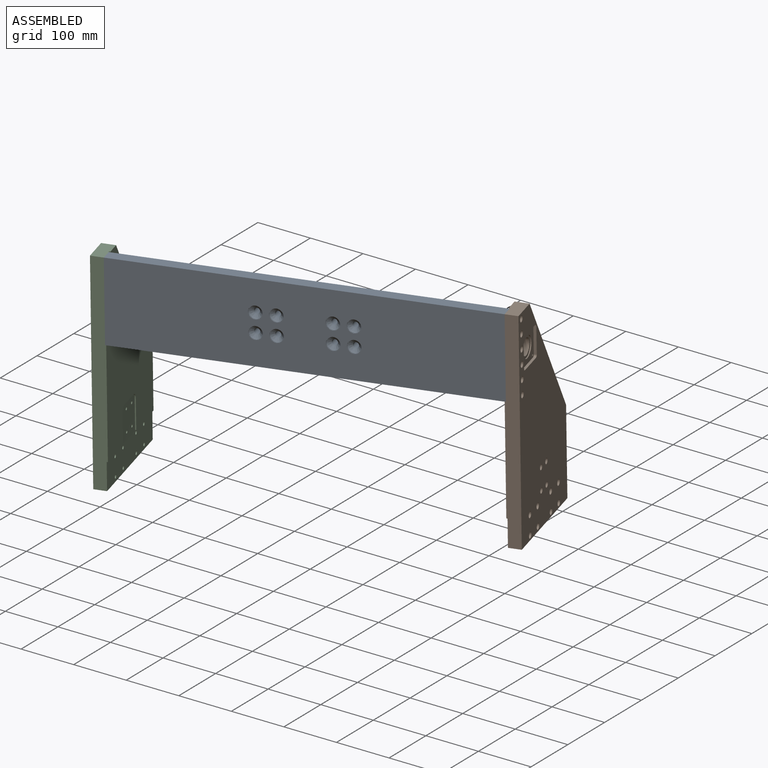
[diagram: assembled view]
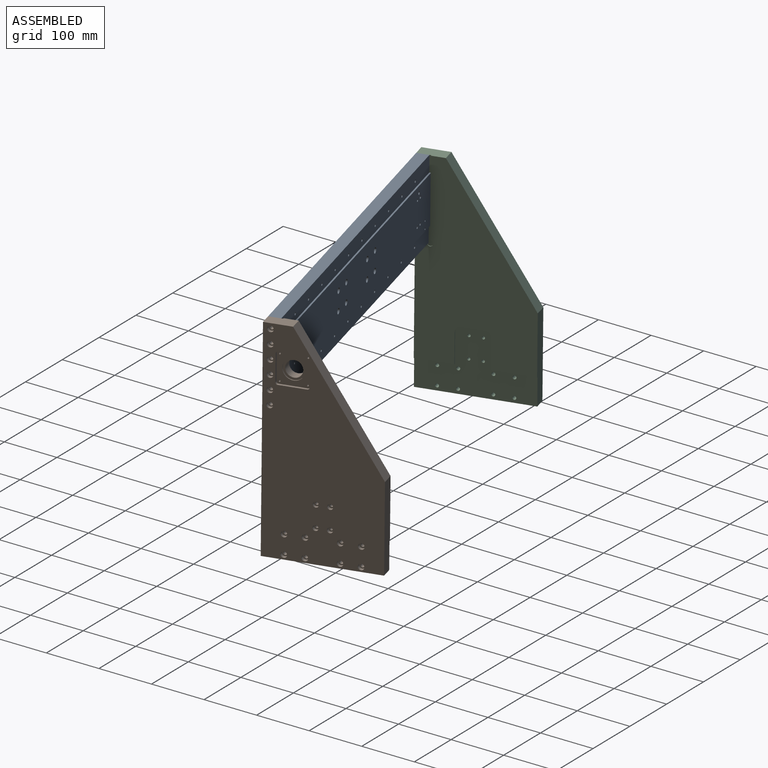
[diagram: assembled view, second angle]
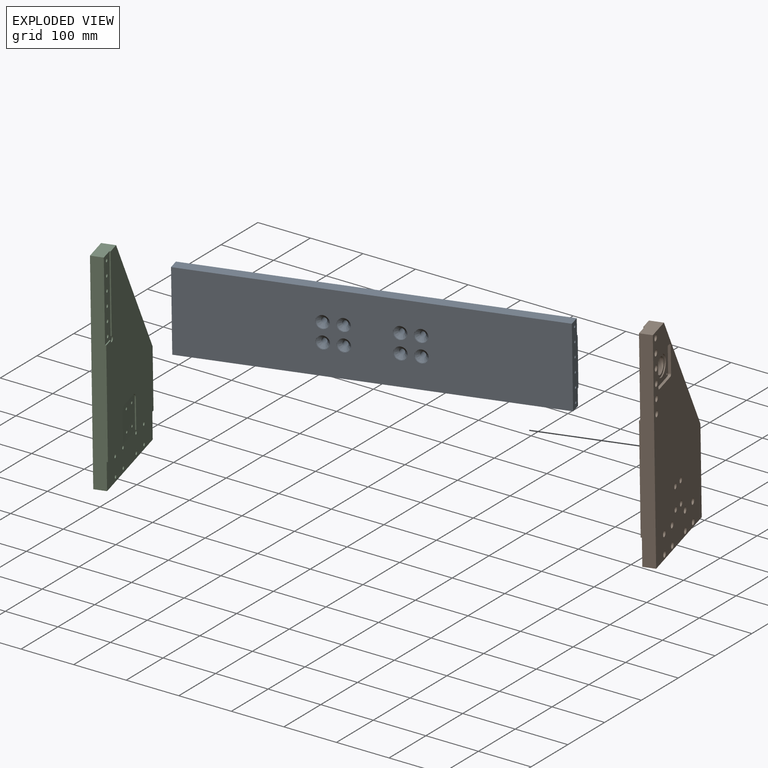
[diagram: exploded view]
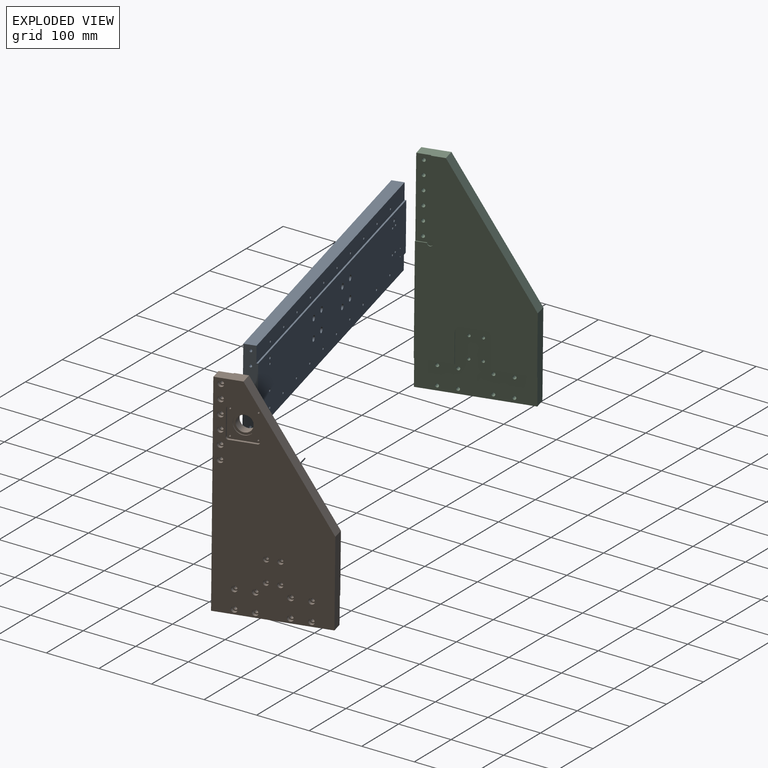
[diagram: exploded view, second angle]
ASSEMBLY  parts=3 mates=4
PART A: 126 faces, bbox 25x666x150 mm
  f0: cylinder r=1.65mm len=8mm, axis (1,0,0), area 82.9mm2, adj f1,f108
  f1: cone r=1.65mm half-angle=59deg, axis (1,0,0), area 10mm2, adj f0
  f2: cylinder r=1.65mm len=8mm, axis (1,0,0), area 82.9mm2, adj f3,f108
  f3: cone r=1.65mm half-angle=59deg, axis (1,0,0), area 10mm2, adj f2
  f4: cone r=11.6mm half-angle=45deg, axis (-1,0,0), area 482.3mm2, adj f105,f125
  f5: cone r=11.6mm half-angle=45deg, axis (-1,0,0), area 482.3mm2, adj f104,f124
  f6: cone r=11.6mm half-angle=45deg, axis (-1,0,0), area 482.3mm2, adj f102,f122
  f7: cone r=11.6mm half-angle=45deg, axis (-1,0,0), area 482.3mm2, adj f103,f123
  f8: cone r=11.6mm half-angle=45deg, axis (-1,0,0), area 482.3mm2, adj f101,f121
  f9: cone r=11.6mm half-angle=45deg, axis (-1,0,0), area 482.3mm2, adj f100,f120
  f10: cone r=11.6mm half-angle=45deg, axis (-1,0,0), area 482.3mm2, adj f99,f119
  f11: cone r=11.6mm half-angle=45deg, axis (-1,0,0), area 482.3mm2, adj f98,f118
  f12: cylinder r=12mm len=24mm, axis (-1,0,0), area 75.4mm2, adj f106,f125
  f13: cylinder r=12mm len=24mm, axis (-1,0,0), area 75.4mm2, adj f106,f124
  f14: cylinder r=12mm len=24mm, axis (-1,0,0), area 75.4mm2, adj f106,f123
  f15: cylinder r=12mm len=24mm, axis (-1,0,0), area 75.4mm2, adj f106,f122
  f16: cylinder r=12mm len=24mm, axis (-1,0,0), area 75.4mm2, adj f106,f121
  f17: cylinder r=12mm len=24mm, axis (-1,0,0), area 75.4mm2, adj f106,f120
  f18: cylinder r=12mm len=24mm, axis (-1,0,0), area 75.4mm2, adj f106,f119
  f19: cylinder r=12mm len=24mm, axis (-1,0,0), area 75.4mm2, adj f106,f118
  f20: cylinder r=2.5mm len=25mm, axis (0,1,0), area 392.7mm2, adj f21,f115
  f21: cone r=2.5mm half-angle=59deg, axis (0,1,0), area 22.9mm2, adj f20
  f22: cylinder r=2.5mm len=25mm, axis (0,1,0), area 392.7mm2, adj f23,f115
  f23: cone r=2.5mm half-angle=59deg, axis (0,1,0), area 22.9mm2, adj f22
  f24: cylinder r=2.5mm len=25mm, axis (0,1,0), area 392.7mm2, adj f25,f115
  f25: cone r=2.5mm half-angle=59deg, axis (0,1,0), area 22.9mm2, adj f24
  f26: cylinder r=2.5mm len=25mm, axis (0,1,0), area 392.7mm2, adj f27,f115
  f27: cone r=2.5mm half-angle=59deg, axis (0,1,0), area 22.9mm2, adj f26
  f28: cylinder r=2.5mm len=25mm, axis (0,1,0), area 392.7mm2, adj f29,f115
  f29: cone r=2.5mm half-angle=59deg, axis (0,1,0), area 22.9mm2, adj f28
  f30: cylinder r=2.5mm len=25mm, axis (0,1,0), area 392.7mm2, adj f31,f115
  f31: cone r=2.5mm half-angle=59deg, axis (0,1,0), area 22.9mm2, adj f30
  f32: cylinder r=2.5mm len=25mm, axis (0,-1,0), area 392.7mm2, adj f33,f114
  f33: cone r=2.5mm half-angle=59deg, axis (0,-1,0), area 22.9mm2, adj f32
  f34: cylinder r=2.5mm len=25mm, axis (0,-1,0), area 392.7mm2, adj f35,f114
  f35: cone r=2.5mm half-angle=59deg, axis (0,-1,0), area 22.9mm2, adj f34
  f36: cylinder r=2.5mm len=25mm, axis (0,-1,0), area 392.7mm2, adj f37,f114
  f37: cone r=2.5mm half-angle=59deg, axis (0,-1,0), area 22.9mm2, adj f36
  f38: cylinder r=2.5mm len=25mm, axis (0,-1,0), area 392.7mm2, adj f39,f114
  f39: cone r=2.5mm half-angle=59deg, axis (0,-1,0), area 22.9mm2, adj f38
  f40: cylinder r=2.5mm len=25mm, axis (0,-1,0), area 392.7mm2, adj f41,f114
  f41: cone r=2.5mm half-angle=59deg, axis (0,-1,0), area 22.9mm2, adj f40
  f42: cylinder r=2.5mm len=25mm, axis (0,-1,0), area 392.7mm2, adj f43,f114
  f43: cone r=2.5mm half-angle=59deg, axis (0,-1,0), area 22.9mm2, adj f42
  f44: cylinder r=3mm len=15mm, axis (1,0,0), area 282.7mm2, adj f108,f117
  f45: cylinder r=3mm len=15mm, axis (1,0,0), area 282.7mm2, adj f108,f116
  f46: cylinder r=2.5mm len=20mm, axis (1,0,0), area 314.2mm2, adj f47,f108
  f47: cone r=2.5mm half-angle=59deg, axis (1,0,0), area 22.9mm2, adj f46
  f48: cylinder r=2.5mm len=20mm, axis (1,0,0), area 314.2mm2, adj f49,f108
  f49: cone r=2.5mm half-angle=59deg, axis (1,0,0), area 22.9mm2, adj f48
  f50: cylinder r=2.5mm len=20mm, axis (1,0,0), area 314.2mm2, adj f51,f108
  f51: cone r=2.5mm half-angle=59deg, axis (1,0,0), area 22.9mm2, adj f50
  f52: cylinder r=2.5mm len=20mm, axis (1,0,0), area 314.2mm2, adj f53,f108
  f53: cone r=2.5mm half-angle=59deg, axis (1,0,0), area 22.9mm2, adj f52
  f54: cylinder r=2.5mm len=20mm, axis (1,0,0), area 314.2mm2, adj f55,f108
  f55: cone r=2.5mm half-angle=59deg, axis (1,0,0), area 22.9mm2, adj f54
  f56: cylinder r=2.5mm len=20mm, axis (1,0,0), area 314.2mm2, adj f57,f108
  f57: cone r=2.5mm half-angle=59deg, axis (1,0,0), area 22.9mm2, adj f56
  f58: cylinder r=2.5mm len=19mm, axis (1,0,0), area 298.5mm2, adj f59,f112
  f59: cone r=2.5mm half-angle=59deg, axis (1,0,0), area 22.9mm2, adj f58
  f60: cylinder r=2.5mm len=19mm, axis (1,0,0), area 298.5mm2, adj f61,f112
  f61: cone r=2.5mm half-angle=59deg, axis (1,0,0), area 22.9mm2, adj f60
  f62: cylinder r=2.5mm len=19mm, axis (1,0,0), area 298.5mm2, adj f63,f112
  f63: cone r=2.5mm half-angle=59deg, axis (1,0,0), area 22.9mm2, adj f62
  f64: cylinder r=2.5mm len=19mm, axis (1,0,0), area 298.5mm2, adj f65,f112
  f65: cone r=2.5mm half-angle=59deg, axis (1,0,0), area 22.9mm2, adj f64
  f66: cylinder r=2.5mm len=19mm, axis (1,0,0), area 298.5mm2, adj f67,f112
  f67: cone r=2.5mm half-angle=59deg, axis (1,0,0), area 22.9mm2, adj f66
  f68: cylinder r=2.5mm len=19mm, axis (1,0,0), area 298.5mm2, adj f69,f112
  f69: cone r=2.5mm half-angle=59deg, axis (1,0,0), area 22.9mm2, adj f68
  f70: cylinder r=2.5mm len=19mm, axis (1,0,0), area 298.5mm2, adj f71,f112
  f71: cone r=2.5mm half-angle=59deg, axis (1,0,0), area 22.9mm2, adj f70
  f72: cylinder r=2.5mm len=19mm, axis (1,0,0), area 298.5mm2, adj f73,f112
  f73: cone r=2.5mm half-angle=59deg, axis (1,0,0), area 22.9mm2, adj f72
  f74: cylinder r=2.5mm len=19mm, axis (1,0,0), area 298.5mm2, adj f75,f112
  f75: cone r=2.5mm half-angle=59deg, axis (1,0,0), area 22.9mm2, adj f74
  f76: cylinder r=2.5mm len=19mm, axis (1,0,0), area 298.5mm2, adj f77,f112
  f77: cone r=2.5mm half-angle=59deg, axis (1,0,0), area 22.9mm2, adj f76
  f78: cylinder r=2.5mm len=19mm, axis (1,0,0), area 298.5mm2, adj f79,f109
  f79: cone r=2.5mm half-angle=59deg, axis (1,0,0), area 22.9mm2, adj f78
  f80: cylinder r=2.5mm len=19mm, axis (1,0,0), area 298.5mm2, adj f81,f109
  f81: cone r=2.5mm half-angle=59deg, axis (1,0,0), area 22.9mm2, adj f80
  f82: cylinder r=2.5mm len=19mm, axis (1,0,0), area 298.5mm2, adj f83,f109
  f83: cone r=2.5mm half-angle=59deg, axis (1,0,0), area 22.9mm2, adj f82
  f84: cylinder r=2.5mm len=19mm, axis (1,0,0), area 298.5mm2, adj f85,f109
  f85: cone r=2.5mm half-angle=59deg, axis (1,0,0), area 22.9mm2, adj f84
  f86: cylinder r=2.5mm len=19mm, axis (1,0,0), area 298.5mm2, adj f87,f109
  f87: cone r=2.5mm half-angle=59deg, axis (1,0,0), area 22.9mm2, adj f86
  f88: cylinder r=2.5mm len=19mm, axis (1,0,0), area 298.5mm2, adj f89,f109
  f89: cone r=2.5mm half-angle=59deg, axis (1,0,0), area 22.9mm2, adj f88
  f90: cylinder r=2.5mm len=19mm, axis (1,0,0), area 298.5mm2, adj f91,f109
  f91: cone r=2.5mm half-angle=59deg, axis (1,0,0), area 22.9mm2, adj f90
  f92: cylinder r=2.5mm len=19mm, axis (1,0,0), area 298.5mm2, adj f93,f109
  f93: cone r=2.5mm half-angle=59deg, axis (1,0,0), area 22.9mm2, adj f92
  f94: cylinder r=2.5mm len=19mm, axis (1,0,0), area 298.5mm2, adj f95,f109
  f95: cone r=2.5mm half-angle=59deg, axis (1,0,0), area 22.9mm2, adj f94
  f96: cylinder r=2.5mm len=19mm, axis (1,0,0), area 298.5mm2, adj f97,f109
  f97: cone r=2.5mm half-angle=59deg, axis (1,0,0), area 22.9mm2, adj f96
  f98: cylinder r=5.1mm len=17.5mm, axis (1,0,0), area 560.8mm2, adj f11,f108
  f99: cylinder r=5.1mm len=17.5mm, axis (1,0,0), area 560.8mm2, adj f10,f108
  f100: cylinder r=5.1mm len=17.5mm, axis (1,0,0), area 560.8mm2, adj f9,f108
  f101: cylinder r=5.1mm len=17.5mm, axis (1,0,0), area 560.8mm2, adj f8,f108
  f102: cylinder r=5.1mm len=17.5mm, axis (1,0,0), area 560.8mm2, adj f6,f108
  f103: cylinder r=5.1mm len=17.5mm, axis (1,0,0), area 560.8mm2, adj f7,f108
  f104: cylinder r=5.1mm len=17.5mm, axis (1,0,0), area 560.8mm2, adj f5,f108
  f105: cylinder r=5.1mm len=17.5mm, axis (1,0,0), area 560.8mm2, adj f4,f108
  f106: plane 666x150mm, normal (-1,0,0), area 96280.9mm2, adj f12,f13,f14,f15,f16,f17,f18,f19
  f107: plane 666x22mm, normal (0,0,-1), area 14652mm2, adj f106,f109,f114,f115
  f108: plane 666x90mm, normal (1,0,0), area 59094.8mm2, adj f0,f2,f44,f45,f46,f48,f50,f52
  f109: plane 666x30mm, normal (1,0,0), area 19783.7mm2, adj f78,f80,f82,f84,f86,f88,f90,f92
  f110: plane 666x3mm, normal (0,0,-1), area 1998mm2, adj f108,f109,f114,f115
  f111: plane 666x22mm, normal (0,0,1), area 14652mm2, adj f106,f112,f114,f115
  f112: plane 666x30mm, normal (1,0,0), area 19783.7mm2, adj f58,f60,f62,f64,f66,f68,f70,f72
  f113: plane 666x3mm, normal (0,0,1), area 1998mm2, adj f108,f112,f114,f115
  f114: plane 150x25mm, normal (0,-1,0), area 3452.2mm2, adj f32,f34,f36,f38,f40,f42,f106,f107
  f115: plane 150x25mm, normal (0,1,0), area 3452.2mm2, adj f20,f22,f24,f26,f28,f30,f106,f107
  f116: plane 6x6mm, normal (1,0,0), area 28.3mm2, adj f45
  f117: plane 6x6mm, normal (1,0,0), area 28.3mm2, adj f44
  f118: plane 24x24mm, normal (-1,0,0), area 29.7mm2, adj f11,f19
  f119: plane 24x24mm, normal (-1,0,0), area 29.7mm2, adj f10,f18
  f120: plane 24x24mm, normal (-1,0,0), area 29.7mm2, adj f9,f17
  f121: plane 24x24mm, normal (-1,0,0), area 29.7mm2, adj f8,f16
  f122: plane 24x24mm, normal (-1,0,0), area 29.7mm2, adj f6,f15
  f123: plane 24x24mm, normal (-1,0,0), area 29.7mm2, adj f7,f14
  f124: plane 24x24mm, normal (-1,0,0), area 29.7mm2, adj f5,f13
  f125: plane 24x24mm, normal (-1,0,0), area 29.7mm2, adj f4,f12
PART B: 93 faces, bbox 25x205x400 mm
  f0: cylinder r=15mm len=30mm, axis (-1,0,0), area 1696.5mm2, adj f53,f90
  f1: cylinder r=1.65mm len=16mm, axis (1,0,0), area 165.9mm2, adj f2,f89
  f2: cone r=1.65mm half-angle=59deg, axis (1,0,0), area 10mm2, adj f1
  f3: cylinder r=1.65mm len=16mm, axis (1,0,0), area 165.9mm2, adj f4,f89
  f4: cone r=1.65mm half-angle=59deg, axis (1,0,0), area 10mm2, adj f3
  f5: cylinder r=1.65mm len=16mm, axis (1,0,0), area 165.9mm2, adj f6,f89
  f6: cone r=1.65mm half-angle=59deg, axis (1,0,0), area 10mm2, adj f5
  f7: cylinder r=1.65mm len=16mm, axis (1,0,0), area 165.9mm2, adj f8,f89
  f8: cone r=1.65mm half-angle=59deg, axis (1,0,0), area 10mm2, adj f7
  f9: cylinder r=19.1mm len=38.2mm, axis (1,0,0), area 240mm2, adj f89,f90
  f10: cylinder r=5.5mm len=11mm, axis (1,0,0), area 221.2mm2, adj f46,f78
  f11: cylinder r=3.3mm len=16.6mm, axis (1,0,0), area 344.2mm2, adj f60,f78
  f12: cylinder r=5.5mm len=11mm, axis (1,0,0), area 221.2mm2, adj f46,f77
  f13: cylinder r=3.3mm len=16.6mm, axis (1,0,0), area 344.2mm2, adj f60,f77
  f14: cylinder r=5.5mm len=11mm, axis (1,0,0), area 221.2mm2, adj f46,f76
  f15: cylinder r=3.3mm len=16.6mm, axis (1,0,0), area 344.2mm2, adj f60,f76
  f16: cylinder r=5.5mm len=11mm, axis (1,0,0), area 221.2mm2, adj f46,f75
  f17: cylinder r=3.3mm len=16.6mm, axis (1,0,0), area 344.2mm2, adj f60,f75
  f18: cylinder r=5.5mm len=11mm, axis (1,0,0), area 221.2mm2, adj f46,f74
  f19: cylinder r=3.3mm len=16.6mm, axis (1,0,0), area 344.2mm2, adj f60,f74
  f20: cylinder r=5.5mm len=11mm, axis (1,0,0), area 221.2mm2, adj f46,f73
  f21: cylinder r=3.3mm len=16.6mm, axis (1,0,0), area 344.2mm2, adj f60,f73
  f22: cylinder r=5.5mm len=11mm, axis (1,0,0), area 221.2mm2, adj f46,f72
  f23: cylinder r=3.3mm len=16.6mm, axis (1,0,0), area 344.2mm2, adj f54,f72
  f24: cylinder r=5.5mm len=11mm, axis (1,0,0), area 221.2mm2, adj f46,f71
  f25: cylinder r=3.3mm len=16.6mm, axis (1,0,0), area 344.2mm2, adj f54,f71
  f26: cylinder r=5.5mm len=11mm, axis (1,0,0), area 221.2mm2, adj f46,f70
  f27: cylinder r=3.3mm len=16.6mm, axis (1,0,0), area 344.2mm2, adj f54,f70
  f28: cylinder r=5.5mm len=11mm, axis (1,0,0), area 221.2mm2, adj f46,f69
  f29: cylinder r=3.3mm len=16.6mm, axis (1,0,0), area 344.2mm2, adj f54,f69
  f30: cylinder r=5.5mm len=11mm, axis (1,0,0), area 221.2mm2, adj f46,f68
  f31: cylinder r=3.3mm len=16.6mm, axis (1,0,0), area 344.2mm2, adj f54,f68
  f32: cylinder r=5.5mm len=11mm, axis (1,0,0), area 221.2mm2, adj f46,f67
  f33: cylinder r=3.3mm len=16.6mm, axis (1,0,0), area 344.2mm2, adj f54,f67
  f34: cylinder r=5.5mm len=11mm, axis (1,0,0), area 221.2mm2, adj f46,f66
  f35: cylinder r=3.3mm len=16.6mm, axis (1,0,0), area 344.2mm2, adj f54,f66
  f36: cylinder r=5.5mm len=11mm, axis (1,0,0), area 221.2mm2, adj f46,f65
  f37: cylinder r=3.3mm len=16.6mm, axis (1,0,0), area 344.2mm2, adj f54,f65
  f38: cylinder r=5mm len=10mm, axis (1,0,0), area 201.1mm2, adj f46,f64
  f39: cylinder r=2.75mm len=16.6mm, axis (1,0,0), area 286.8mm2, adj f54,f64
  f40: cylinder r=5mm len=10mm, axis (1,0,0), area 201.1mm2, adj f46,f63
  f41: cylinder r=2.75mm len=16.6mm, axis (1,0,0), area 286.8mm2, adj f54,f63
  f42: cylinder r=5mm len=10mm, axis (1,0,0), area 201.1mm2, adj f46,f62
  f43: cylinder r=2.75mm len=16.6mm, axis (1,0,0), area 286.8mm2, adj f54,f62
  f44: cylinder r=5mm len=10mm, axis (1,0,0), area 169.6mm2, adj f46,f61
  f45: cylinder r=2.75mm len=17.6mm, axis (1,0,0), area 304.1mm2, adj f54,f61
  f46: plane 400x205mm, normal (1,0,0), area 58520.1mm2, adj f10,f12,f14,f16,f18,f20,f22,f24
  f47: plane 77.5x2mm, normal (0,0,-1), area 155mm2, adj f50,f53,f54,f56
  f48: plane 400x25mm, normal (0,-1,0), area 9600mm2, adj f46,f49,f52,f53,f54,f55,f60,f79
  f49: plane 205x23mm, normal (0,0,-1), area 4715mm2, adj f46,f48,f50,f54
  f50: plane 160x25mm, normal (0,1,0), area 3900mm2, adj f46,f47,f49,f51,f53,f54
  f51: plane 240x155mm, normal (0,0.84,0.54), area 7142.5mm2, adj f46,f50,f52,f53
  f52: plane 50x25mm, normal (0,0,1), area 1200mm2, adj f46,f48,f51,f53,f59,f60
  f53: plane 350x205mm, normal (-1,0,0), area 44777.2mm2, adj f0,f47,f48,f50,f51,f52,f55,f56
  f54: plane 205x115mm, normal (-1,0,0), area 13738.4mm2, adj f23,f25,f27,f29,f31,f33,f35,f37
  f55: plane 67.5x2mm, normal (0,0,-1), area 135mm2, adj f48,f53,f54,f92
  f56: plane 55x2mm, normal (0,-1,0), area 110mm2, adj f47,f53,f54,f57
  f57: cylinder r=10mm len=10mm, axis (-1,0,0), area 31.4mm2, adj f53,f54,f56,f58
  f58: plane 40x2mm, normal (0,0,-1), area 80mm2, adj f53,f54,f57,f91
  f59: plane 145x2mm, normal (0,-1,0), area 290mm2, adj f52,f53,f60,f80
  f60: plane 155x30mm, normal (-1,0,0), area 3603.6mm2, adj f11,f13,f15,f17,f19,f21,f48,f52
  f61: plane 10x10mm, normal (1,0,0), area 54.8mm2, adj f44,f45
  f62: plane 10x10mm, normal (1,0,0), area 54.8mm2, adj f42,f43
  f63: plane 10x10mm, normal (1,0,0), area 54.8mm2, adj f40,f41
  f64: plane 10x10mm, normal (1,0,0), area 54.8mm2, adj f38,f39
  f65: plane 11x11mm, normal (1,0,0), area 60.8mm2, adj f36,f37
  f66: plane 11x11mm, normal (1,0,0), area 60.8mm2, adj f34,f35
  f67: plane 11x11mm, normal (1,0,0), area 60.8mm2, adj f32,f33
  f68: plane 11x11mm, normal (1,0,0), area 60.8mm2, adj f30,f31
  f69: plane 11x11mm, normal (1,0,0), area 60.8mm2, adj f28,f29
  f70: plane 11x11mm, normal (1,0,0), area 60.8mm2, adj f26,f27
  f71: plane 11x11mm, normal (1,0,0), area 60.8mm2, adj f24,f25
  f72: plane 11x11mm, normal (1,0,0), area 60.8mm2, adj f22,f23
  f73: plane 11x11mm, normal (1,0,0), area 60.8mm2, adj f20,f21
  f74: plane 11x11mm, normal (1,0,0), area 60.8mm2, adj f18,f19
  f75: plane 11x11mm, normal (1,0,0), area 60.8mm2, adj f16,f17
  f76: plane 11x11mm, normal (1,0,0), area 60.8mm2, adj f14,f15
  f77: plane 11x11mm, normal (1,0,0), area 60.8mm2, adj f12,f13
  f78: plane 11x11mm, normal (1,0,0), area 60.8mm2, adj f10,f11
  f79: plane 20x2mm, normal (0,0,1), area 40mm2, adj f48,f53,f60,f80
  f80: cylinder r=5mm len=10mm, axis (-1,0,0), area 47.1mm2, adj f53,f59,f60,f79
  f81: plane 49x5mm, normal (0,-1,0), area 245mm2, adj f46,f82,f88,f89
  f82: cylinder r=4mm len=5mm, axis (1,0,0), area 31.4mm2, adj f46,f81,f83,f89
  f83: plane 49x5mm, normal (0,0,1), area 245mm2, adj f46,f82,f84,f89
  f84: cylinder r=4mm len=5mm, axis (1,0,0), area 31.4mm2, adj f46,f83,f85,f89
  f85: plane 49x5mm, normal (0,1,0), area 245mm2, adj f46,f84,f86,f89
  f86: cylinder r=4mm len=5mm, axis (1,0,0), area 31.4mm2, adj f46,f85,f87,f89
  f87: plane 49x5mm, normal (0,0,-1), area 245mm2, adj f46,f86,f88,f89
  f88: cylinder r=4mm len=5mm, axis (1,0,0), area 31.4mm2, adj f46,f81,f87,f89
  f89: plane 57x57mm, normal (1,0,0), area 2055mm2, adj f1,f3,f5,f7,f9,f81,f82,f83
  f90: plane 38.2x38.2mm, normal (1,0,0), area 439.2mm2, adj f0,f9
  f91: cylinder r=10mm len=10mm, axis (-1,0,0), area 31.4mm2, adj f53,f54,f58,f92
  f92: plane 55x2mm, normal (0,1,0), area 110mm2, adj f53,f54,f55,f91
PART C: 73 faces, bbox 25x205x400 mm
  f0: cylinder r=5.5mm len=11mm, axis (-1,0,0), area 221.2mm2, adj f37,f70
  f1: cylinder r=5.5mm len=11mm, axis (-1,0,0), area 221.2mm2, adj f37,f69
  f2: cylinder r=5.5mm len=11mm, axis (-1,0,0), area 221.2mm2, adj f37,f68
  f3: cylinder r=5.5mm len=11mm, axis (-1,0,0), area 221.2mm2, adj f37,f67
  f4: cylinder r=5.5mm len=11mm, axis (-1,0,0), area 221.2mm2, adj f37,f66
  f5: cylinder r=5.5mm len=11mm, axis (-1,0,0), area 221.2mm2, adj f37,f65
  f6: cylinder r=5.5mm len=11mm, axis (-1,0,0), area 221.2mm2, adj f37,f64
  f7: cylinder r=3.3mm len=16.6mm, axis (-1,0,0), area 344.2mm2, adj f45,f64
  f8: cylinder r=5.5mm len=11mm, axis (-1,0,0), area 221.2mm2, adj f37,f63
  f9: cylinder r=3.3mm len=16.6mm, axis (-1,0,0), area 344.2mm2, adj f45,f63
  f10: cylinder r=5.5mm len=11mm, axis (-1,0,0), area 221.2mm2, adj f37,f62
  f11: cylinder r=3.3mm len=16.6mm, axis (-1,0,0), area 344.2mm2, adj f45,f62
  f12: cylinder r=5.5mm len=11mm, axis (-1,0,0), area 221.2mm2, adj f37,f61
  f13: cylinder r=3.3mm len=16.6mm, axis (-1,0,0), area 344.2mm2, adj f45,f61
  f14: cylinder r=5.5mm len=11mm, axis (-1,0,0), area 221.2mm2, adj f37,f60
  f15: cylinder r=3.3mm len=16.6mm, axis (-1,0,0), area 344.2mm2, adj f45,f60
  f16: cylinder r=5.5mm len=11mm, axis (-1,0,0), area 221.2mm2, adj f37,f59
  f17: cylinder r=3.3mm len=16.6mm, axis (-1,0,0), area 344.2mm2, adj f45,f59
  f18: cylinder r=5.5mm len=11mm, axis (-1,0,0), area 221.2mm2, adj f37,f58
  f19: cylinder r=3.3mm len=16.6mm, axis (-1,0,0), area 344.2mm2, adj f45,f58
  f20: cylinder r=5.5mm len=11mm, axis (-1,0,0), area 221.2mm2, adj f37,f57
  f21: cylinder r=3.3mm len=16.6mm, axis (-1,0,0), area 344.2mm2, adj f45,f57
  f22: cylinder r=5mm len=10mm, axis (-1,0,0), area 169.6mm2, adj f37,f56
  f23: cylinder r=2.75mm len=17.6mm, axis (-1,0,0), area 304.1mm2, adj f45,f56
  f24: cylinder r=5mm len=10mm, axis (-1,0,0), area 169.6mm2, adj f37,f55
  f25: cylinder r=2.75mm len=17.6mm, axis (-1,0,0), area 304.1mm2, adj f45,f55
  f26: cylinder r=5mm len=10mm, axis (-1,0,0), area 169.6mm2, adj f37,f54
  f27: cylinder r=2.75mm len=17.6mm, axis (-1,0,0), area 304.1mm2, adj f45,f54
  f28: cylinder r=5mm len=10mm, axis (-1,0,0), area 169.6mm2, adj f37,f53
  f29: cylinder r=2.75mm len=17.6mm, axis (-1,0,0), area 304.1mm2, adj f45,f53
  f30: cylinder r=3.3mm len=16.6mm, axis (1,0,0), area 344.2mm2, adj f51,f65
  f31: cylinder r=3.3mm len=16.6mm, axis (1,0,0), area 344.2mm2, adj f51,f66
  f32: cylinder r=3.3mm len=16.6mm, axis (1,0,0), area 344.2mm2, adj f51,f67
  f33: cylinder r=3.3mm len=16.6mm, axis (1,0,0), area 344.2mm2, adj f51,f68
  f34: cylinder r=3.3mm len=16.6mm, axis (1,0,0), area 344.2mm2, adj f51,f69
  f35: cylinder r=3.3mm len=16.6mm, axis (1,0,0), area 344.2mm2, adj f51,f70
  f36: plane 67.5x2mm, normal (0,0,1), area 135mm2, adj f39,f41,f45,f71
  f37: plane 400x205mm, normal (-1,0,0), area 61755.4mm2, adj f0,f1,f2,f3,f4,f5,f6,f8
  f38: plane 50x25mm, normal (0,0,-1), area 1200mm2, adj f37,f39,f41,f42,f49,f51
  f39: plane 350x205mm, normal (1,0,0), area 45484mm2, adj f36,f38,f40,f41,f42,f44,f46,f47
  f40: plane 160x25mm, normal (0,-1,0), area 3900mm2, adj f37,f39,f42,f43,f44,f45
  f41: plane 400x25mm, normal (0,1,0), area 9600mm2, adj f36,f37,f38,f39,f43,f45,f50,f51
  f42: plane 240x155mm, normal (0,-0.84,-0.54), area 7142.5mm2, adj f37,f38,f39,f40
  f43: plane 205x23mm, normal (0,0,1), area 4715mm2, adj f37,f40,f41,f45
  f44: plane 77.5x2mm, normal (0,0,1), area 155mm2, adj f39,f40,f45,f47
  f45: plane 205x115mm, normal (1,0,0), area 13738.4mm2, adj f7,f9,f11,f13,f15,f17,f19,f21
  f46: plane 40x2mm, normal (0,0,1), area 80mm2, adj f39,f45,f48,f72
  f47: plane 55x2mm, normal (0,1,0), area 110mm2, adj f39,f44,f45,f48
  f48: cylinder r=10mm len=10mm, axis (-1,0,0), area 31.4mm2, adj f39,f45,f46,f47
  f49: plane 145x2mm, normal (0,1,0), area 290mm2, adj f38,f39,f51,f52
  f50: plane 20x2mm, normal (0,0,-1), area 40mm2, adj f39,f41,f51,f52
  f51: plane 155x30mm, normal (1,0,0), area 3603.6mm2, adj f30,f31,f32,f33,f34,f35,f38,f41
  f52: cylinder r=5mm len=10mm, axis (1,0,0), area 47.1mm2, adj f39,f49,f50,f51
  f53: plane 10x10mm, normal (-1,0,0), area 54.8mm2, adj f28,f29
  f54: plane 10x10mm, normal (-1,0,0), area 54.8mm2, adj f26,f27
  f55: plane 10x10mm, normal (-1,0,0), area 54.8mm2, adj f24,f25
  f56: plane 10x10mm, normal (-1,0,0), area 54.8mm2, adj f22,f23
  f57: plane 11x11mm, normal (-1,0,0), area 60.8mm2, adj f20,f21
  f58: plane 11x11mm, normal (-1,0,0), area 60.8mm2, adj f18,f19
  f59: plane 11x11mm, normal (-1,0,0), area 60.8mm2, adj f16,f17
  f60: plane 11x11mm, normal (-1,0,0), area 60.8mm2, adj f14,f15
  f61: plane 11x11mm, normal (-1,0,0), area 60.8mm2, adj f12,f13
  f62: plane 11x11mm, normal (-1,0,0), area 60.8mm2, adj f10,f11
  f63: plane 11x11mm, normal (-1,0,0), area 60.8mm2, adj f8,f9
  f64: plane 11x11mm, normal (-1,0,0), area 60.8mm2, adj f6,f7
  f65: plane 11x11mm, normal (-1,0,0), area 60.8mm2, adj f5,f30
  f66: plane 11x11mm, normal (-1,0,0), area 60.8mm2, adj f4,f31
  f67: plane 11x11mm, normal (-1,0,0), area 60.8mm2, adj f3,f32
  f68: plane 11x11mm, normal (-1,0,0), area 60.8mm2, adj f2,f33
  f69: plane 11x11mm, normal (-1,0,0), area 60.8mm2, adj f1,f34
  f70: plane 11x11mm, normal (-1,0,0), area 60.8mm2, adj f0,f35
  f71: plane 55x2mm, normal (0,-1,0), area 110mm2, adj f36,f39,f45,f72
  f72: cylinder r=10mm len=10mm, axis (1,0,0), area 31.4mm2, adj f39,f45,f46,f71
PLACE A rot(axis=(0.61,0.79,0),179.3deg) t=(-1133.95,803.73,1194.95)mm
PLACE B rot(axis=(-0.01,-0.06,1),14.7deg) t=(-1162.44,794.59,794.45)mm
PLACE C rot(axis=(0.99,0.13,0.01),179.9deg) t=(-1833.14,620.02,1183.89)mm
MATE parallel A.f11 <-> B.f48  axis (0.25,-0.97,0) through (-1408.1,731.32,1098.1)mm
MATE parallel A.f107 <-> B.f52  axis (-0.02,0,1) through (-1491.66,721.12,1189.29)mm
MATE planar A.f114 <-> C.f51  axis (-0.97,-0.25,-0.02) through (-1812.74,637.4,1109.21)mm
MATE planar A.f115 <-> B.f54  axis (0.97,0.25,0.02) through (-1168.68,806.63,1119.4)mm
